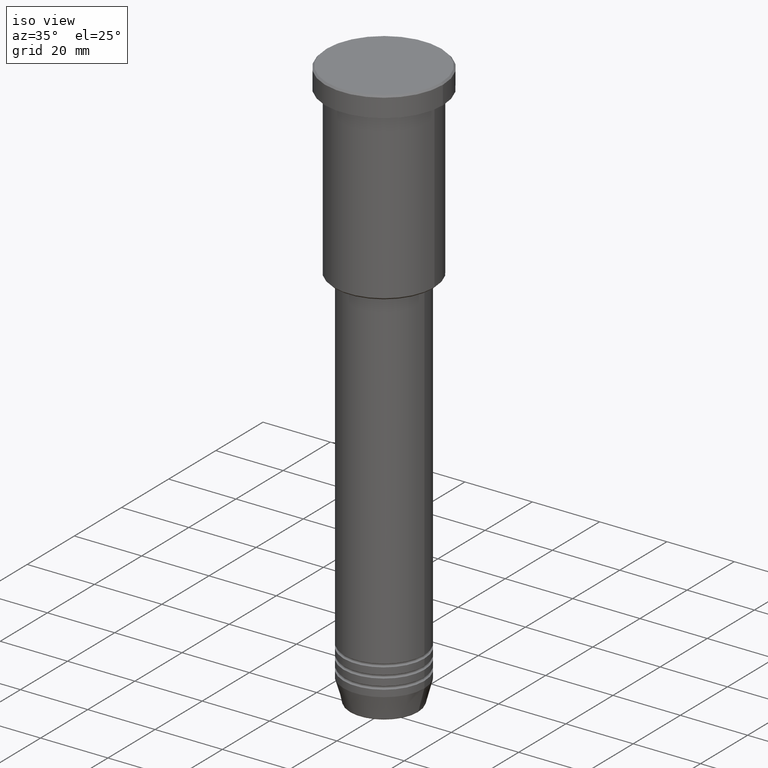
[diagram: clean part render]
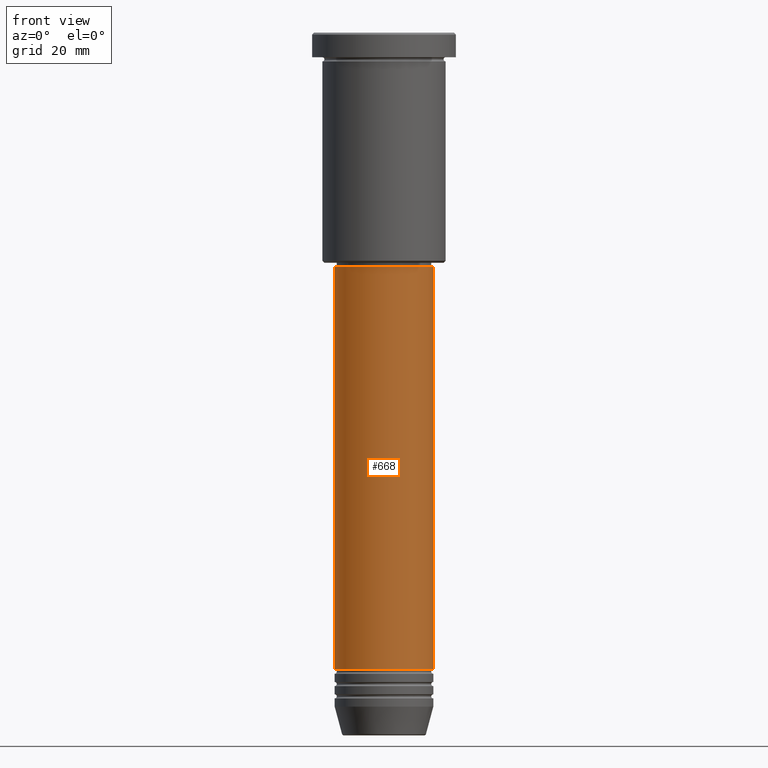
[diagram: tour spotlight — one face highlighted and labeled with its STEP entity id]
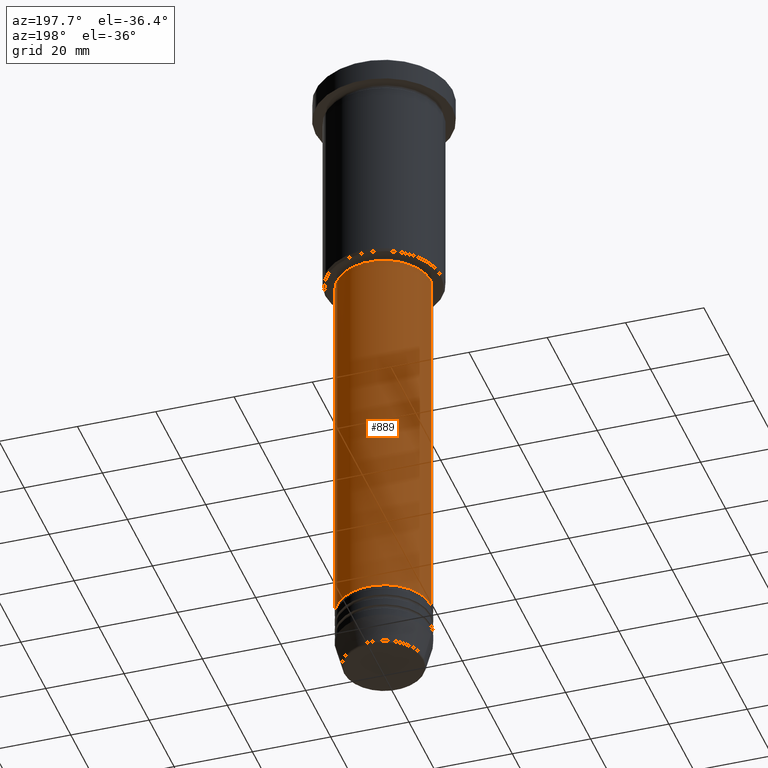
[diagram: tour spotlight — one face highlighted and labeled with its STEP entity id]
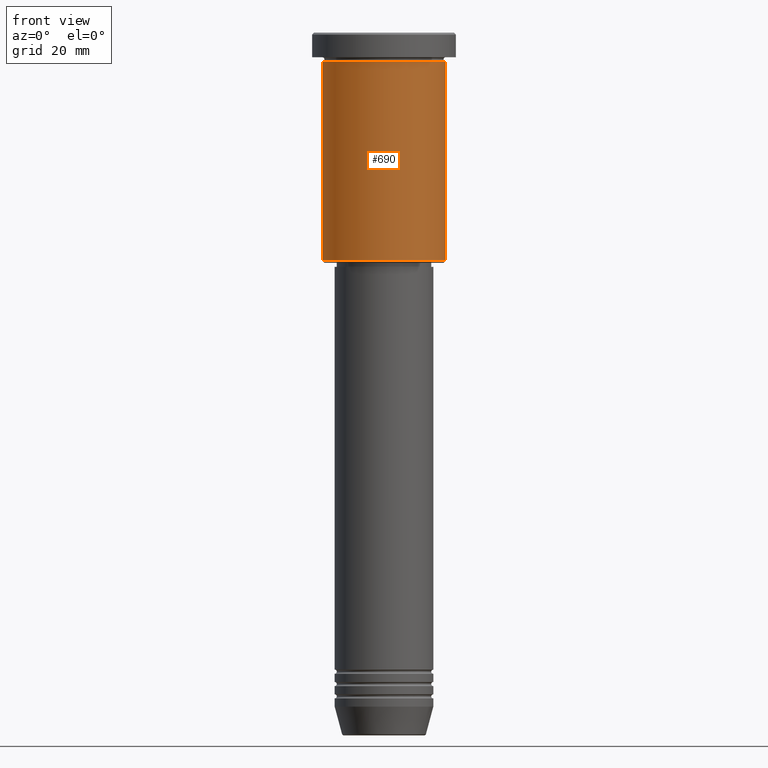
[diagram: tour spotlight — one face highlighted and labeled with its STEP entity id]
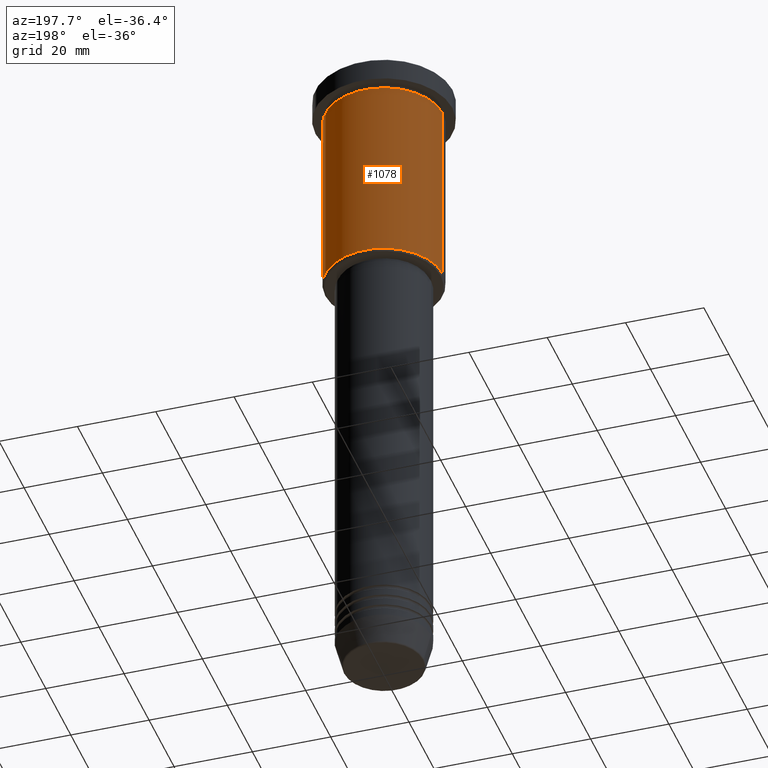
[diagram: tour spotlight — one face highlighted and labeled with its STEP entity id]
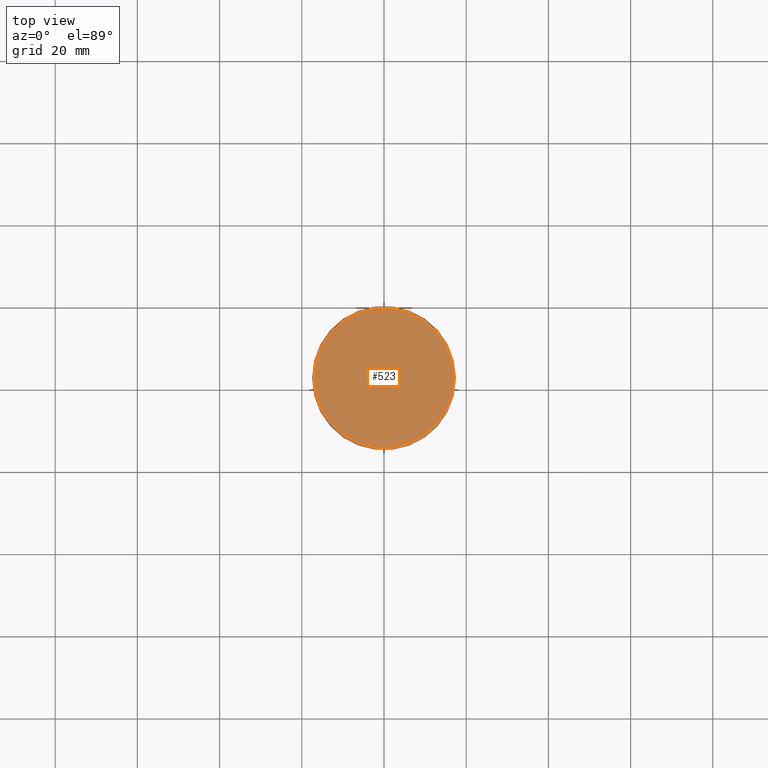
[diagram: tour spotlight — one face highlighted and labeled with its STEP entity id]
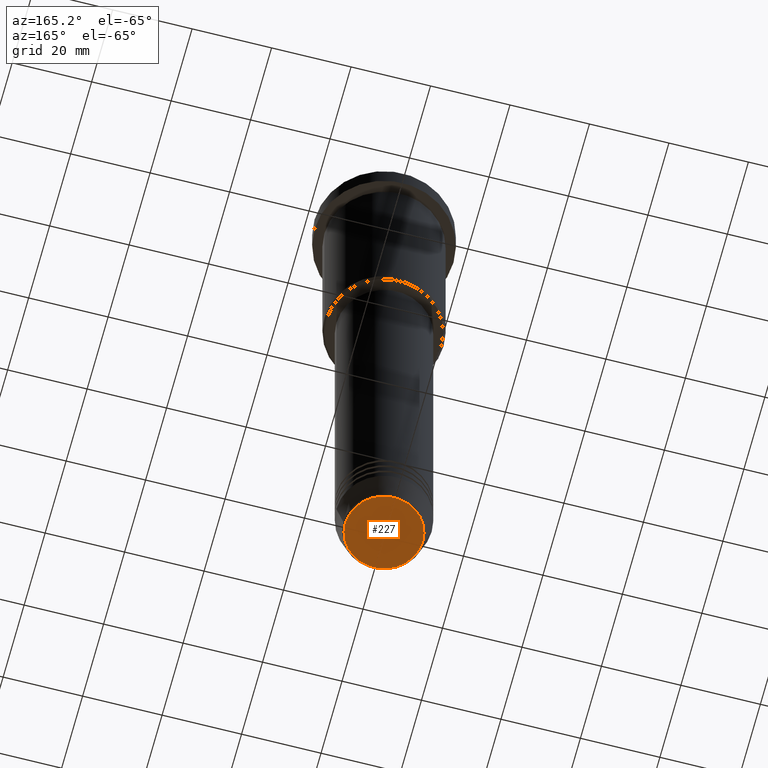
[diagram: tour spotlight — one face highlighted and labeled with its STEP entity id]
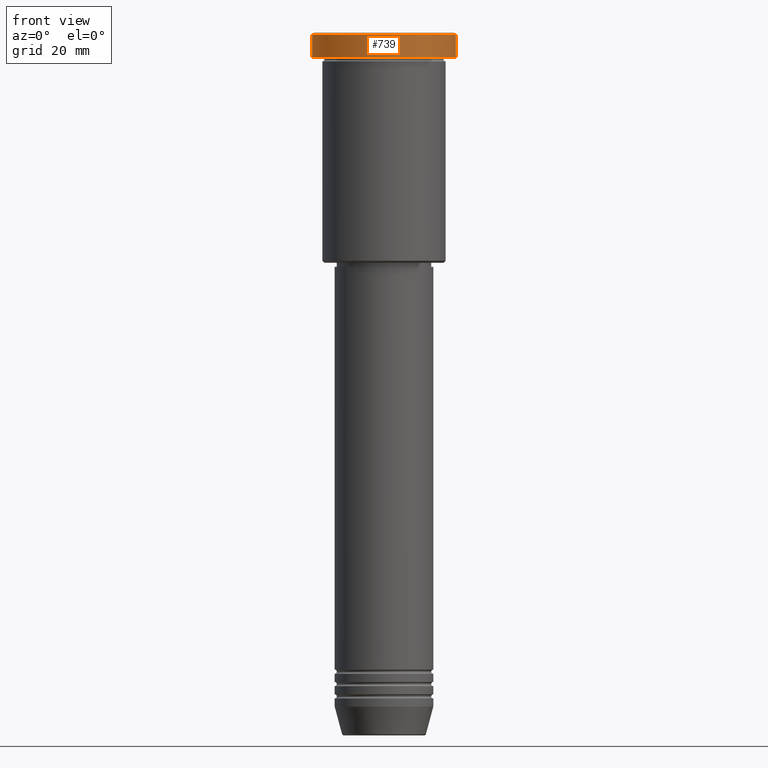
[diagram: tour spotlight — one face highlighted and labeled with its STEP entity id]
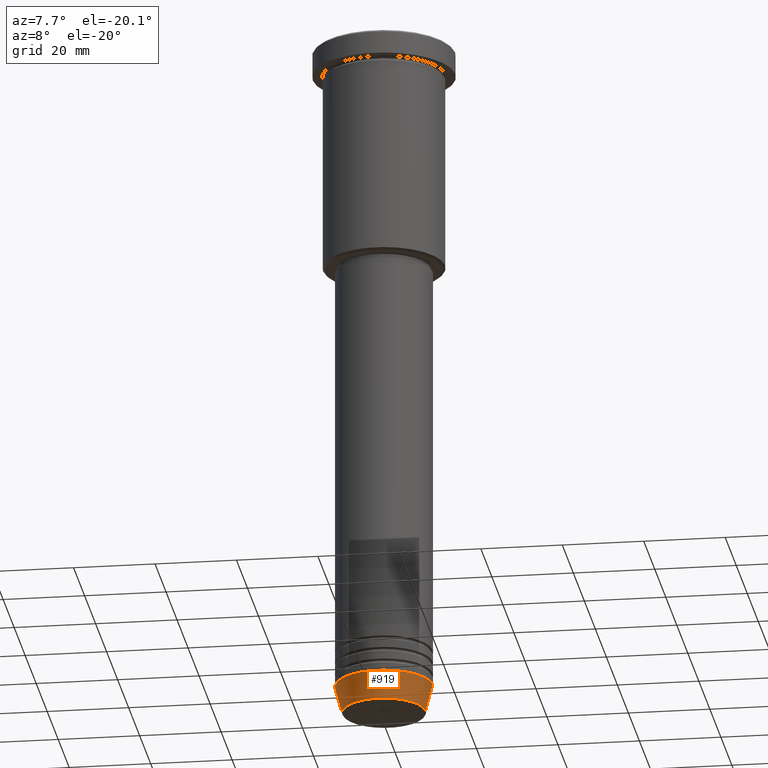
[diagram: tour spotlight — one face highlighted and labeled with its STEP entity id]
A machine part: a face-by-face anatomy tour. The part has 43 B-rep faces; the first image is the clean iso view, then the 8 largest visible faces are spotlighted one at a time (largest first), each with its STEP entity span.

Face 1 — front view, entity #668. In plain terms, the highlighted cylindrical surface (partial cylindrical patch) has radius 12 mm, axis along (-0, -0, 1).
Definition (entity closure, byte-faithful):
#8 = LINE ( 'NONE', #1009, #115 ) ;
#29 = VECTOR ( 'NONE', #470, 1000.000000000000000 ) ;
#34 = ORIENTED_EDGE ( 'NONE', *, *, #152, .T. ) ;
#48 = AXIS2_PLACEMENT_3D ( 'NONE', #202, #1013, #218 ) ;
#70 = EDGE_LOOP ( 'NONE', ( #904, #815, #34, #643 ) ) ;
#115 = VECTOR ( 'NONE', #742, 1000.000000000000000 ) ;
#145 = VERTEX_POINT ( 'NONE', #631 ) ;
#146 = EDGE_CURVE ( 'NONE', #401, #315, #654, .T. ) ;
#152 = EDGE_CURVE ( 'NONE', #241, #145, #8, .T. ) ;
#173 = EDGE_CURVE ( 'NONE', #315, #145, #325, .T. ) ;
#179 = CARTESIAN_POINT ( 'NONE',  ( 12.00000000000000000, 0.000000000000000000, -154.9999999999999716 ) ) ;
#202 = CARTESIAN_POINT ( 'NONE',  ( 0.000000000000000000, 0.000000000000000000, -154.9999999999999716 ) ) ;
#218 = DIRECTION ( 'NONE',  ( 1.000000000000000000, 0.000000000000000000, 0.000000000000000000 ) ) ;
#241 = VERTEX_POINT ( 'NONE', #179 ) ;
#276 = CARTESIAN_POINT ( 'NONE',  ( 0.000000000000000000, 0.000000000000000000, -57.00000000000000000 ) ) ;
#305 = AXIS2_PLACEMENT_3D ( 'NONE', #276, #640, #996 ) ;
#315 = VERTEX_POINT ( 'NONE', #787 ) ;
#320 = CYLINDRICAL_SURFACE ( 'NONE', #820, 12.00000000000000000 ) ;
#325 = CIRCLE ( 'NONE', #305, 12.00000000000000000 ) ;
#401 = VERTEX_POINT ( 'NONE', #998 ) ;
#411 = DIRECTION ( 'NONE',  ( 1.000000000000000000, 0.000000000000000000, 0.000000000000000000 ) ) ;
#437 = CIRCLE ( 'NONE', #48, 12.00000000000000000 ) ;
#470 = DIRECTION ( 'NONE',  ( -0.000000000000000000, -0.000000000000000000, 1.000000000000000000 ) ) ;
#508 = CARTESIAN_POINT ( 'NONE',  ( 0.000000000000000000, 0.000000000000000000, 0.000000000000000000 ) ) ;
#519 = FACE_OUTER_BOUND ( 'NONE', #70, .T. ) ;
#631 = CARTESIAN_POINT ( 'NONE',  ( 12.00000000000000000, 0.000000000000000000, -57.00000000000000000 ) ) ;
#640 = DIRECTION ( 'NONE',  ( -0.000000000000000000, -0.000000000000000000, 1.000000000000000000 ) ) ;
#643 = ORIENTED_EDGE ( 'NONE', *, *, #173, .F. ) ;
#654 = LINE ( 'NONE', #992, #29 ) ;
#668 = ADVANCED_FACE ( 'NONE', ( #519 ), #320, .T. ) ;
#742 = DIRECTION ( 'NONE',  ( -0.000000000000000000, -0.000000000000000000, 1.000000000000000000 ) ) ;
#787 = CARTESIAN_POINT ( 'NONE',  ( -12.00000000000000000, 1.469576158976823947E-15, -57.00000000000000000 ) ) ;
#815 = ORIENTED_EDGE ( 'NONE', *, *, #885, .T. ) ;
#820 = AXIS2_PLACEMENT_3D ( 'NONE', #508, #1058, #411 ) ;
#885 = EDGE_CURVE ( 'NONE', #401, #241, #437, .T. ) ;
#904 = ORIENTED_EDGE ( 'NONE', *, *, #146, .F. ) ;
#992 = CARTESIAN_POINT ( 'NONE',  ( -12.00000000000000000, 1.469576158976823947E-15, 0.000000000000000000 ) ) ;
#996 = DIRECTION ( 'NONE',  ( 1.000000000000000000, 0.000000000000000000, 0.000000000000000000 ) ) ;
#998 = CARTESIAN_POINT ( 'NONE',  ( -12.00000000000000000, 1.469576158976823947E-15, -154.9999999999999716 ) ) ;
#1009 = CARTESIAN_POINT ( 'NONE',  ( 12.00000000000000000, 0.000000000000000000, 0.000000000000000000 ) ) ;
#1013 = DIRECTION ( 'NONE',  ( -0.000000000000000000, -0.000000000000000000, 1.000000000000000000 ) ) ;
#1058 = DIRECTION ( 'NONE',  ( -0.000000000000000000, -0.000000000000000000, 1.000000000000000000 ) ) ;

Face 2 — auxiliary view, entity #889. In plain terms, the highlighted cylindrical surface (partial cylindrical patch) has radius 12 mm, axis along (-0, -0, 1).
Definition (entity closure, byte-faithful):
#8 = LINE ( 'NONE', #1009, #115 ) ;
#29 = VECTOR ( 'NONE', #470, 1000.000000000000000 ) ;
#35 = ORIENTED_EDGE ( 'NONE', *, *, #152, .F. ) ;
#106 = DIRECTION ( 'NONE',  ( -0.000000000000000000, -0.000000000000000000, 1.000000000000000000 ) ) ;
#115 = VECTOR ( 'NONE', #742, 1000.000000000000000 ) ;
#133 = AXIS2_PLACEMENT_3D ( 'NONE', #239, #867, #785 ) ;
#145 = VERTEX_POINT ( 'NONE', #631 ) ;
#146 = EDGE_CURVE ( 'NONE', #401, #315, #654, .T. ) ;
#152 = EDGE_CURVE ( 'NONE', #241, #145, #8, .T. ) ;
#179 = CARTESIAN_POINT ( 'NONE',  ( 12.00000000000000000, 0.000000000000000000, -154.9999999999999716 ) ) ;
#239 = CARTESIAN_POINT ( 'NONE',  ( 0.000000000000000000, 0.000000000000000000, -57.00000000000000000 ) ) ;
#241 = VERTEX_POINT ( 'NONE', #179 ) ;
#313 = ORIENTED_EDGE ( 'NONE', *, *, #736, .T. ) ;
#315 = VERTEX_POINT ( 'NONE', #787 ) ;
#344 = CIRCLE ( 'NONE', #667, 12.00000000000000000 ) ;
#401 = VERTEX_POINT ( 'NONE', #998 ) ;
#470 = DIRECTION ( 'NONE',  ( -0.000000000000000000, -0.000000000000000000, 1.000000000000000000 ) ) ;
#531 = DIRECTION ( 'NONE',  ( -0.000000000000000000, -0.000000000000000000, 1.000000000000000000 ) ) ;
#563 = CYLINDRICAL_SURFACE ( 'NONE', #990, 12.00000000000000000 ) ;
#608 = EDGE_LOOP ( 'NONE', ( #313, #768, #965, #35 ) ) ;
#631 = CARTESIAN_POINT ( 'NONE',  ( 12.00000000000000000, 0.000000000000000000, -57.00000000000000000 ) ) ;
#654 = LINE ( 'NONE', #992, #29 ) ;
#663 = FACE_OUTER_BOUND ( 'NONE', #608, .T. ) ;
#667 = AXIS2_PLACEMENT_3D ( 'NONE', #712, #531, #824 ) ;
#694 = EDGE_CURVE ( 'NONE', #145, #315, #1176, .T. ) ;
#712 = CARTESIAN_POINT ( 'NONE',  ( 0.000000000000000000, 0.000000000000000000, -154.9999999999999716 ) ) ;
#736 = EDGE_CURVE ( 'NONE', #241, #401, #344, .T. ) ;
#742 = DIRECTION ( 'NONE',  ( -0.000000000000000000, -0.000000000000000000, 1.000000000000000000 ) ) ;
#768 = ORIENTED_EDGE ( 'NONE', *, *, #146, .T. ) ;
#785 = DIRECTION ( 'NONE',  ( 1.000000000000000000, 0.000000000000000000, 0.000000000000000000 ) ) ;
#787 = CARTESIAN_POINT ( 'NONE',  ( -12.00000000000000000, 1.469576158976823947E-15, -57.00000000000000000 ) ) ;
#824 = DIRECTION ( 'NONE',  ( 1.000000000000000000, 0.000000000000000000, 0.000000000000000000 ) ) ;
#849 = DIRECTION ( 'NONE',  ( 1.000000000000000000, 0.000000000000000000, 0.000000000000000000 ) ) ;
#867 = DIRECTION ( 'NONE',  ( -0.000000000000000000, -0.000000000000000000, 1.000000000000000000 ) ) ;
#889 = ADVANCED_FACE ( 'NONE', ( #663 ), #563, .T. ) ;
#922 = CARTESIAN_POINT ( 'NONE',  ( 0.000000000000000000, 0.000000000000000000, 0.000000000000000000 ) ) ;
#965 = ORIENTED_EDGE ( 'NONE', *, *, #694, .F. ) ;
#990 = AXIS2_PLACEMENT_3D ( 'NONE', #922, #106, #849 ) ;
#992 = CARTESIAN_POINT ( 'NONE',  ( -12.00000000000000000, 1.469576158976823947E-15, 0.000000000000000000 ) ) ;
#998 = CARTESIAN_POINT ( 'NONE',  ( -12.00000000000000000, 1.469576158976823947E-15, -154.9999999999999716 ) ) ;
#1009 = CARTESIAN_POINT ( 'NONE',  ( 12.00000000000000000, 0.000000000000000000, 0.000000000000000000 ) ) ;
#1176 = CIRCLE ( 'NONE', #133, 12.00000000000000000 ) ;

Face 3 — front view, entity #690. In plain terms, the highlighted cylindrical surface (partial cylindrical patch) has radius 15 mm, axis along (-0, -0, 1).
Definition (entity closure, byte-faithful):
#15 = CARTESIAN_POINT ( 'NONE',  ( -15.00000000000000000, 1.836970198721029589E-15, 0.000000000000000000 ) ) ;
#38 = EDGE_LOOP ( 'NONE', ( #1155, #151, #139, #754 ) ) ;
#55 = AXIS2_PLACEMENT_3D ( 'NONE', #355, #1181, #1169 ) ;
#66 = CARTESIAN_POINT ( 'NONE',  ( -15.00000000000000000, 1.836970198721029589E-15, -55.50000000000000711 ) ) ;
#136 = CYLINDRICAL_SURFACE ( 'NONE', #1162, 15.00000000000000000 ) ;
#139 = ORIENTED_EDGE ( 'NONE', *, *, #351, .T. ) ;
#142 = CARTESIAN_POINT ( 'NONE',  ( 15.00000000000000000, 0.000000000000000000, 0.000000000000000000 ) ) ;
#151 = ORIENTED_EDGE ( 'NONE', *, *, #711, .T. ) ;
#168 = EDGE_CURVE ( 'NONE', #337, #205, #726, .T. ) ;
#205 = VERTEX_POINT ( 'NONE', #1029 ) ;
#267 = AXIS2_PLACEMENT_3D ( 'NONE', #1021, #1112, #670 ) ;
#337 = VERTEX_POINT ( 'NONE', #66 ) ;
#351 = EDGE_CURVE ( 'NONE', #989, #927, #953, .T. ) ;
#355 = CARTESIAN_POINT ( 'NONE',  ( 0.000000000000000000, 0.000000000000000000, -55.50000000000000711 ) ) ;
#436 = CIRCLE ( 'NONE', #55, 15.00000000000000000 ) ;
#500 = DIRECTION ( 'NONE',  ( -0.000000000000000000, -0.000000000000000000, 1.000000000000000000 ) ) ;
#526 = CARTESIAN_POINT ( 'NONE',  ( 0.000000000000000000, 0.000000000000000000, 0.000000000000000000 ) ) ;
#560 = CARTESIAN_POINT ( 'NONE',  ( 15.00000000000000000, 0.000000000000000000, -6.999999999999995559 ) ) ;
#593 = CIRCLE ( 'NONE', #267, 15.00000000000000000 ) ;
#670 = DIRECTION ( 'NONE',  ( 1.000000000000000000, 0.000000000000000000, 0.000000000000000000 ) ) ;
#690 = ADVANCED_FACE ( 'NONE', ( #972 ), #136, .T. ) ;
#700 = VECTOR ( 'NONE', #1088, 1000.000000000000000 ) ;
#711 = EDGE_CURVE ( 'NONE', #337, #989, #436, .T. ) ;
#726 = LINE ( 'NONE', #15, #700 ) ;
#754 = ORIENTED_EDGE ( 'NONE', *, *, #924, .F. ) ;
#852 = VECTOR ( 'NONE', #500, 1000.000000000000000 ) ;
#924 = EDGE_CURVE ( 'NONE', #205, #927, #593, .T. ) ;
#927 = VERTEX_POINT ( 'NONE', #560 ) ;
#929 = CARTESIAN_POINT ( 'NONE',  ( 15.00000000000000000, 0.000000000000000000, -55.50000000000000711 ) ) ;
#953 = LINE ( 'NONE', #142, #852 ) ;
#972 = FACE_OUTER_BOUND ( 'NONE', #38, .T. ) ;
#989 = VERTEX_POINT ( 'NONE', #929 ) ;
#1021 = CARTESIAN_POINT ( 'NONE',  ( 0.000000000000000000, 0.000000000000000000, -6.999999999999995559 ) ) ;
#1029 = CARTESIAN_POINT ( 'NONE',  ( -15.00000000000000000, 1.836970198721029589E-15, -6.999999999999995559 ) ) ;
#1048 = DIRECTION ( 'NONE',  ( -0.000000000000000000, -0.000000000000000000, 1.000000000000000000 ) ) ;
#1088 = DIRECTION ( 'NONE',  ( -0.000000000000000000, -0.000000000000000000, 1.000000000000000000 ) ) ;
#1112 = DIRECTION ( 'NONE',  ( -0.000000000000000000, -0.000000000000000000, 1.000000000000000000 ) ) ;
#1155 = ORIENTED_EDGE ( 'NONE', *, *, #168, .F. ) ;
#1157 = DIRECTION ( 'NONE',  ( 1.000000000000000000, 0.000000000000000000, 0.000000000000000000 ) ) ;
#1162 = AXIS2_PLACEMENT_3D ( 'NONE', #526, #1048, #1157 ) ;
#1169 = DIRECTION ( 'NONE',  ( -1.000000000000000000, 0.000000000000000000, 0.000000000000000000 ) ) ;
#1181 = DIRECTION ( 'NONE',  ( -0.000000000000000000, -0.000000000000000000, 1.000000000000000000 ) ) ;

Face 4 — auxiliary view, entity #1078. In plain terms, the highlighted cylindrical surface (partial cylindrical patch) has radius 15 mm, axis along (-0, -0, 1).
Definition (entity closure, byte-faithful):
#9 = CIRCLE ( 'NONE', #681, 15.00000000000000000 ) ;
#15 = CARTESIAN_POINT ( 'NONE',  ( -15.00000000000000000, 1.836970198721029589E-15, 0.000000000000000000 ) ) ;
#47 = CARTESIAN_POINT ( 'NONE',  ( 0.000000000000000000, 0.000000000000000000, 0.000000000000000000 ) ) ;
#59 = DIRECTION ( 'NONE',  ( 1.000000000000000000, 0.000000000000000000, 0.000000000000000000 ) ) ;
#66 = CARTESIAN_POINT ( 'NONE',  ( -15.00000000000000000, 1.836970198721029589E-15, -55.50000000000000711 ) ) ;
#102 = EDGE_CURVE ( 'NONE', #989, #337, #9, .T. ) ;
#107 = DIRECTION ( 'NONE',  ( -0.000000000000000000, -0.000000000000000000, 1.000000000000000000 ) ) ;
#132 = DIRECTION ( 'NONE',  ( -0.000000000000000000, -0.000000000000000000, 1.000000000000000000 ) ) ;
#142 = CARTESIAN_POINT ( 'NONE',  ( 15.00000000000000000, 0.000000000000000000, 0.000000000000000000 ) ) ;
#168 = EDGE_CURVE ( 'NONE', #337, #205, #726, .T. ) ;
#205 = VERTEX_POINT ( 'NONE', #1029 ) ;
#253 = CIRCLE ( 'NONE', #303, 15.00000000000000000 ) ;
#303 = AXIS2_PLACEMENT_3D ( 'NONE', #769, #132, #1133 ) ;
#318 = CYLINDRICAL_SURFACE ( 'NONE', #823, 15.00000000000000000 ) ;
#337 = VERTEX_POINT ( 'NONE', #66 ) ;
#351 = EDGE_CURVE ( 'NONE', #989, #927, #953, .T. ) ;
#369 = ORIENTED_EDGE ( 'NONE', *, *, #1166, .F. ) ;
#449 = DIRECTION ( 'NONE',  ( -1.000000000000000000, 0.000000000000000000, 0.000000000000000000 ) ) ;
#500 = DIRECTION ( 'NONE',  ( -0.000000000000000000, -0.000000000000000000, 1.000000000000000000 ) ) ;
#560 = CARTESIAN_POINT ( 'NONE',  ( 15.00000000000000000, 0.000000000000000000, -6.999999999999995559 ) ) ;
#564 = CARTESIAN_POINT ( 'NONE',  ( 0.000000000000000000, 0.000000000000000000, -55.50000000000000711 ) ) ;
#681 = AXIS2_PLACEMENT_3D ( 'NONE', #564, #107, #449 ) ;
#695 = ORIENTED_EDGE ( 'NONE', *, *, #168, .T. ) ;
#700 = VECTOR ( 'NONE', #1088, 1000.000000000000000 ) ;
#726 = LINE ( 'NONE', #15, #700 ) ;
#740 = EDGE_LOOP ( 'NONE', ( #1130, #695, #369, #826 ) ) ;
#769 = CARTESIAN_POINT ( 'NONE',  ( 0.000000000000000000, 0.000000000000000000, -6.999999999999995559 ) ) ;
#823 = AXIS2_PLACEMENT_3D ( 'NONE', #47, #1047, #59 ) ;
#826 = ORIENTED_EDGE ( 'NONE', *, *, #351, .F. ) ;
#852 = VECTOR ( 'NONE', #500, 1000.000000000000000 ) ;
#872 = FACE_OUTER_BOUND ( 'NONE', #740, .T. ) ;
#927 = VERTEX_POINT ( 'NONE', #560 ) ;
#929 = CARTESIAN_POINT ( 'NONE',  ( 15.00000000000000000, 0.000000000000000000, -55.50000000000000711 ) ) ;
#953 = LINE ( 'NONE', #142, #852 ) ;
#989 = VERTEX_POINT ( 'NONE', #929 ) ;
#1029 = CARTESIAN_POINT ( 'NONE',  ( -15.00000000000000000, 1.836970198721029589E-15, -6.999999999999995559 ) ) ;
#1047 = DIRECTION ( 'NONE',  ( -0.000000000000000000, -0.000000000000000000, 1.000000000000000000 ) ) ;
#1078 = ADVANCED_FACE ( 'NONE', ( #872 ), #318, .T. ) ;
#1088 = DIRECTION ( 'NONE',  ( -0.000000000000000000, -0.000000000000000000, 1.000000000000000000 ) ) ;
#1130 = ORIENTED_EDGE ( 'NONE', *, *, #102, .T. ) ;
#1133 = DIRECTION ( 'NONE',  ( 1.000000000000000000, 0.000000000000000000, 0.000000000000000000 ) ) ;
#1166 = EDGE_CURVE ( 'NONE', #927, #205, #253, .T. ) ;

Face 5 — top view, entity #523. In plain terms, the highlighted planar face has unit normal (0, -0, 1).
Definition (entity closure, byte-faithful):
#89 = ORIENTED_EDGE ( 'NONE', *, *, #497, .T. ) ;
#109 = ORIENTED_EDGE ( 'NONE', *, *, #809, .T. ) ;
#191 = CARTESIAN_POINT ( 'NONE',  ( 17.00000000000001421, 2.112515728529185250E-15, 0.000000000000000000 ) ) ;
#194 = DIRECTION ( 'NONE',  ( 1.000000000000000000, 0.000000000000000000, 0.000000000000000000 ) ) ;
#200 = DIRECTION ( 'NONE',  ( 1.000000000000000000, 0.000000000000000000, 0.000000000000000000 ) ) ;
#264 = FACE_OUTER_BOUND ( 'NONE', #1131, .T. ) ;
#282 = DIRECTION ( 'NONE',  ( -0.000000000000000000, -0.000000000000000000, 1.000000000000000000 ) ) ;
#360 = AXIS2_PLACEMENT_3D ( 'NONE', #1089, #807, #194 ) ;
#365 = DIRECTION ( 'NONE',  ( 1.000000000000000000, 0.000000000000000000, 0.000000000000000000 ) ) ;
#497 = EDGE_CURVE ( 'NONE', #691, #839, #517, .T. ) ;
#517 = CIRCLE ( 'NONE', #703, 17.00000000000001421 ) ;
#523 = ADVANCED_FACE ( 'NONE', ( #264 ), #641, .T. ) ;
#623 = CARTESIAN_POINT ( 'NONE',  ( 0.000000000000000000, 0.000000000000000000, 0.000000000000000000 ) ) ;
#641 = PLANE ( 'NONE',  #360 ) ;
#679 = CARTESIAN_POINT ( 'NONE',  ( -17.00000000000001421, 0.000000000000000000, 0.000000000000000000 ) ) ;
#691 = VERTEX_POINT ( 'NONE', #679 ) ;
#703 = AXIS2_PLACEMENT_3D ( 'NONE', #1099, #282, #200 ) ;
#717 = AXIS2_PLACEMENT_3D ( 'NONE', #623, #896, #365 ) ;
#807 = DIRECTION ( 'NONE',  ( 0.000000000000000000, -0.000000000000000000, 1.000000000000000000 ) ) ;
#809 = EDGE_CURVE ( 'NONE', #839, #691, #950, .T. ) ;
#839 = VERTEX_POINT ( 'NONE', #191 ) ;
#896 = DIRECTION ( 'NONE',  ( -0.000000000000000000, -0.000000000000000000, 1.000000000000000000 ) ) ;
#950 = CIRCLE ( 'NONE', #717, 17.00000000000001421 ) ;
#1089 = CARTESIAN_POINT ( 'NONE',  ( 0.000000000000000000, 0.000000000000000000, 0.000000000000000000 ) ) ;
#1099 = CARTESIAN_POINT ( 'NONE',  ( 0.000000000000000000, 0.000000000000000000, 0.000000000000000000 ) ) ;
#1131 = EDGE_LOOP ( 'NONE', ( #89, #109 ) ) ;

Face 6 — auxiliary view, entity #227. In plain terms, the highlighted planar face has unit normal (0, -0, 1).
Definition (entity closure, byte-faithful):
#4 = EDGE_CURVE ( 'NONE', #183, #900, #284, .T. ) ;
#32 = AXIS2_PLACEMENT_3D ( 'NONE', #788, #336, #148 ) ;
#40 = EDGE_LOOP ( 'NONE', ( #1074, #715 ) ) ;
#118 = DIRECTION ( 'NONE',  ( 0.000000000000000000, -0.000000000000000000, 1.000000000000000000 ) ) ;
#129 = FACE_OUTER_BOUND ( 'NONE', #40, .T. ) ;
#148 = DIRECTION ( 'NONE',  ( 1.000000000000000000, 0.000000000000000000, 0.000000000000000000 ) ) ;
#183 = VERTEX_POINT ( 'NONE', #825 ) ;
#227 = ADVANCED_FACE ( 'NONE', ( #129 ), #402, .F. ) ;
#284 = CIRCLE ( 'NONE', #875, 9.740692158992667160 ) ;
#285 = CIRCLE ( 'NONE', #32, 9.740692158992667160 ) ;
#336 = DIRECTION ( 'NONE',  ( 0.000000000000000000, 0.000000000000000000, -1.000000000000000000 ) ) ;
#402 = PLANE ( 'NONE',  #590 ) ;
#438 = DIRECTION ( 'NONE',  ( 1.000000000000000000, 0.000000000000000000, 0.000000000000000000 ) ) ;
#468 = CARTESIAN_POINT ( 'NONE',  ( -9.740692158992667160, 1.222463696683475393E-15, -170.9999999999999716 ) ) ;
#473 = CARTESIAN_POINT ( 'NONE',  ( 0.000000000000000000, 0.000000000000000000, -170.9999999999999716 ) ) ;
#590 = AXIS2_PLACEMENT_3D ( 'NONE', #473, #118, #1075 ) ;
#672 = EDGE_CURVE ( 'NONE', #900, #183, #285, .T. ) ;
#715 = ORIENTED_EDGE ( 'NONE', *, *, #672, .T. ) ;
#788 = CARTESIAN_POINT ( 'NONE',  ( 0.000000000000000000, 0.000000000000000000, -170.9999999999999716 ) ) ;
#825 = CARTESIAN_POINT ( 'NONE',  ( 9.740692158992667160, 0.000000000000000000, -170.9999999999999716 ) ) ;
#875 = AXIS2_PLACEMENT_3D ( 'NONE', #881, #1160, #438 ) ;
#881 = CARTESIAN_POINT ( 'NONE',  ( 0.000000000000000000, 0.000000000000000000, -170.9999999999999716 ) ) ;
#900 = VERTEX_POINT ( 'NONE', #468 ) ;
#1074 = ORIENTED_EDGE ( 'NONE', *, *, #4, .T. ) ;
#1075 = DIRECTION ( 'NONE',  ( 1.000000000000000000, 0.000000000000000000, 0.000000000000000000 ) ) ;
#1160 = DIRECTION ( 'NONE',  ( 0.000000000000000000, 0.000000000000000000, -1.000000000000000000 ) ) ;

Face 7 — front view, entity #739. In plain terms, the highlighted cylindrical surface (partial cylindrical patch) has radius 17.5 mm, axis along (-0, -0, 1).
Definition (entity closure, byte-faithful):
#50 = DIRECTION ( 'NONE',  ( -0.000000000000000000, -0.000000000000000000, 1.000000000000000000 ) ) ;
#94 = DIRECTION ( 'NONE',  ( -0.000000000000000000, -0.000000000000000000, 1.000000000000000000 ) ) ;
#201 = VERTEX_POINT ( 'NONE', #1111 ) ;
#217 = VECTOR ( 'NONE', #439, 1000.000000000000000 ) ;
#237 = CARTESIAN_POINT ( 'NONE',  ( -17.50000000000000000, 2.143131898507868248E-15, 0.000000000000000000 ) ) ;
#254 = LINE ( 'NONE', #237, #1159 ) ;
#272 = CIRCLE ( 'NONE', #1174, 17.50000000000000000 ) ;
#291 = EDGE_CURVE ( 'NONE', #331, #422, #818, .T. ) ;
#293 = CARTESIAN_POINT ( 'NONE',  ( 17.50000000000000000, 0.000000000000000000, 0.000000000000000000 ) ) ;
#321 = ORIENTED_EDGE ( 'NONE', *, *, #291, .T. ) ;
#328 = EDGE_CURVE ( 'NONE', #331, #1121, #254, .T. ) ;
#331 = VERTEX_POINT ( 'NONE', #704 ) ;
#378 = LINE ( 'NONE', #293, #217 ) ;
#422 = VERTEX_POINT ( 'NONE', #1012 ) ;
#434 = AXIS2_PLACEMENT_3D ( 'NONE', #551, #467, #827 ) ;
#439 = DIRECTION ( 'NONE',  ( -0.000000000000000000, -0.000000000000000000, 1.000000000000000000 ) ) ;
#440 = EDGE_LOOP ( 'NONE', ( #926, #321, #886, #861 ) ) ;
#444 = DIRECTION ( 'NONE',  ( 1.000000000000000000, 0.000000000000000000, 0.000000000000000000 ) ) ;
#467 = DIRECTION ( 'NONE',  ( -0.000000000000000000, -0.000000000000000000, 1.000000000000000000 ) ) ;
#538 = DIRECTION ( 'NONE',  ( 0.000000000000000000, 0.000000000000000000, -1.000000000000000000 ) ) ;
#548 = DIRECTION ( 'NONE',  ( 1.000000000000000000, 0.000000000000000000, 0.000000000000000000 ) ) ;
#551 = CARTESIAN_POINT ( 'NONE',  ( 0.000000000000000000, 0.000000000000000000, -5.999999999999995559 ) ) ;
#561 = EDGE_CURVE ( 'NONE', #422, #201, #378, .T. ) ;
#692 = CARTESIAN_POINT ( 'NONE',  ( -17.50000000000000000, 2.143131898507868248E-15, -0.4999999999999727995 ) ) ;
#704 = CARTESIAN_POINT ( 'NONE',  ( -17.50000000000000000, 2.143131898507868248E-15, -5.999999999999995559 ) ) ;
#710 = CARTESIAN_POINT ( 'NONE',  ( 0.000000000000000000, 0.000000000000000000, 0.000000000000000000 ) ) ;
#739 = ADVANCED_FACE ( 'NONE', ( #1093 ), #804, .T. ) ;
#804 = CYLINDRICAL_SURFACE ( 'NONE', #931, 17.50000000000000000 ) ;
#818 = CIRCLE ( 'NONE', #434, 17.50000000000000000 ) ;
#827 = DIRECTION ( 'NONE',  ( 1.000000000000000000, 0.000000000000000000, 0.000000000000000000 ) ) ;
#850 = EDGE_CURVE ( 'NONE', #201, #1121, #272, .T. ) ;
#861 = ORIENTED_EDGE ( 'NONE', *, *, #850, .T. ) ;
#886 = ORIENTED_EDGE ( 'NONE', *, *, #561, .T. ) ;
#926 = ORIENTED_EDGE ( 'NONE', *, *, #328, .F. ) ;
#931 = AXIS2_PLACEMENT_3D ( 'NONE', #710, #94, #548 ) ;
#981 = CARTESIAN_POINT ( 'NONE',  ( 0.000000000000000000, 0.000000000000000000, -0.4999999999999727995 ) ) ;
#1012 = CARTESIAN_POINT ( 'NONE',  ( 17.50000000000000000, 0.000000000000000000, -5.999999999999995559 ) ) ;
#1093 = FACE_OUTER_BOUND ( 'NONE', #440, .T. ) ;
#1111 = CARTESIAN_POINT ( 'NONE',  ( 17.50000000000000000, 0.000000000000000000, -0.4999999999999727995 ) ) ;
#1121 = VERTEX_POINT ( 'NONE', #692 ) ;
#1159 = VECTOR ( 'NONE', #50, 1000.000000000000000 ) ;
#1174 = AXIS2_PLACEMENT_3D ( 'NONE', #981, #538, #444 ) ;

Face 8 — auxiliary view, entity #919. In plain terms, the highlighted conical surface has half-angle 15 deg.
Definition (entity closure, byte-faithful):
#76 = VECTOR ( 'NONE', #348, 1000.000000000000000 ) ;
#125 = ORIENTED_EDGE ( 'NONE', *, *, #862, .T. ) ;
#167 = CARTESIAN_POINT ( 'NONE',  ( 12.00000000000000000, 0.000000000000000000, -164.0000000000000000 ) ) ;
#197 = CARTESIAN_POINT ( 'NONE',  ( -12.00000000000000000, 1.469576158976823947E-15, -164.0000000000000000 ) ) ;
#220 = ORIENTED_EDGE ( 'NONE', *, *, #338, .F. ) ;
#231 = ORIENTED_EDGE ( 'NONE', *, *, #829, .T. ) ;
#250 = VERTEX_POINT ( 'NONE', #197 ) ;
#281 = CARTESIAN_POINT ( 'NONE',  ( 0.000000000000000000, 0.000000000000000000, -170.6294095225512706 ) ) ;
#286 = EDGE_LOOP ( 'NONE', ( #856, #125, #231, #220 ) ) ;
#296 = CARTESIAN_POINT ( 'NONE',  ( 0.000000000000000000, 0.000000000000000000, -164.0000000000000000 ) ) ;
#307 = FACE_OUTER_BOUND ( 'NONE', #286, .T. ) ;
#338 = EDGE_CURVE ( 'NONE', #250, #651, #611, .T. ) ;
#341 = DIRECTION ( 'NONE',  ( -0.2588190451025213501, 3.169619151431772337E-17, 0.9659258262890680902 ) ) ;
#348 = DIRECTION ( 'NONE',  ( 0.2588190451025213501, 0.000000000000000000, 0.9659258262890680902 ) ) ;
#381 = EDGE_CURVE ( 'NONE', #775, #250, #1076, .T. ) ;
#413 = CIRCLE ( 'NONE', #665, 10.22365507213719660 ) ;
#417 = DIRECTION ( 'NONE',  ( -0.000000000000000000, -0.000000000000000000, 1.000000000000000000 ) ) ;
#474 = DIRECTION ( 'NONE',  ( 1.000000000000000000, 0.000000000000000000, 0.000000000000000000 ) ) ;
#478 = CONICAL_SURFACE ( 'NONE', #1144, 12.00000000000000000, 0.2617993877991500740 ) ;
#595 = CARTESIAN_POINT ( 'NONE',  ( 0.000000000000000000, 0.000000000000000000, -164.0000000000000000 ) ) ;
#602 = CARTESIAN_POINT ( 'NONE',  ( 12.00000000000000000, 0.000000000000000000, -164.0000000000000000 ) ) ;
#611 = CIRCLE ( 'NONE', #966, 12.00000000000000000 ) ;
#645 = DIRECTION ( 'NONE',  ( -0.000000000000000000, -0.000000000000000000, 1.000000000000000000 ) ) ;
#651 = VERTEX_POINT ( 'NONE', #602 ) ;
#665 = AXIS2_PLACEMENT_3D ( 'NONE', #281, #645, #737 ) ;
#731 = VERTEX_POINT ( 'NONE', #991 ) ;
#737 = DIRECTION ( 'NONE',  ( 1.000000000000000000, 0.000000000000000000, 0.000000000000000000 ) ) ;
#775 = VERTEX_POINT ( 'NONE', #888 ) ;
#784 = DIRECTION ( 'NONE',  ( 1.000000000000000000, 0.000000000000000000, 0.000000000000000000 ) ) ;
#829 = EDGE_CURVE ( 'NONE', #731, #651, #999, .T. ) ;
#856 = ORIENTED_EDGE ( 'NONE', *, *, #381, .F. ) ;
#862 = EDGE_CURVE ( 'NONE', #775, #731, #413, .T. ) ;
#877 = VECTOR ( 'NONE', #341, 1000.000000000000000 ) ;
#888 = CARTESIAN_POINT ( 'NONE',  ( -10.22365507213719837, 1.360806402472383336E-15, -170.6294095225512706 ) ) ;
#919 = ADVANCED_FACE ( 'NONE', ( #307 ), #478, .T. ) ;
#966 = AXIS2_PLACEMENT_3D ( 'NONE', #595, #417, #784 ) ;
#991 = CARTESIAN_POINT ( 'NONE',  ( 10.22365507213719660, 0.000000000000000000, -170.6294095225512706 ) ) ;
#999 = LINE ( 'NONE', #167, #76 ) ;
#1007 = DIRECTION ( 'NONE',  ( -0.000000000000000000, -0.000000000000000000, 1.000000000000000000 ) ) ;
#1076 = LINE ( 'NONE', #1156, #877 ) ;
#1144 = AXIS2_PLACEMENT_3D ( 'NONE', #296, #1007, #474 ) ;
#1156 = CARTESIAN_POINT ( 'NONE',  ( -12.00000000000000000, 1.469576158976823947E-15, -164.0000000000000000 ) ) ;